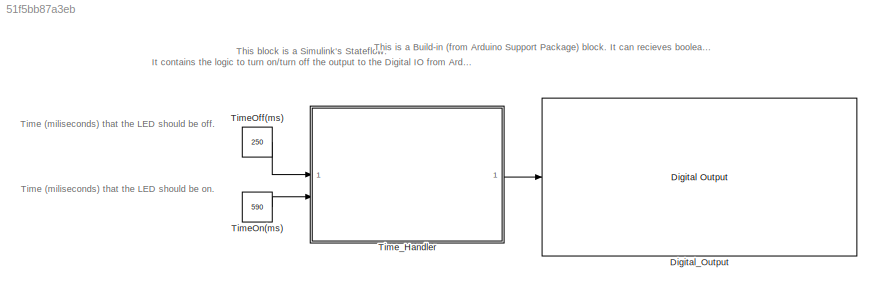
MODEL slx_51f5bb87a3eb
KIND model
CONFIG AbsTol = auto
CONFIG EnableMultiTasking = off
CONFIG FixedStep = 0.005
CONFIG MaxStep = auto
CONFIG MinStep = auto
CONFIG RelTol = 1e-3
CONFIG SampleTimeConstraint = Unconstrained
CONFIG SolverName = FixedStepDiscrete
CONFIG StartTime = 0.0
CONFIG StopTime = 10.0
BLOCK [Reference] Digital_Output  REF=arduinolib/Digital Output
  SourceBlock = arduinolib/Digital Output
  SourceType = Arduino Digital Output
BLOCK [Constant] TimeOff(ms)
  OutDataTypeStr = uint32
  Value = 250
BLOCK [Constant] TimeOn(ms)
  OutDataTypeStr = uint32
  Value = 590
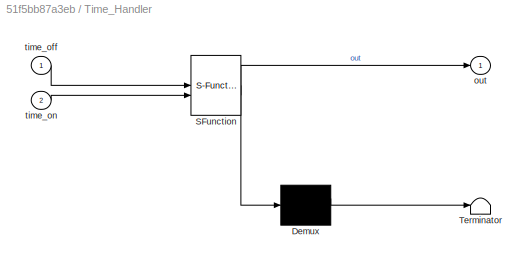
BLOCK [SubSystem] Time_Handler
  ErrorFcn = Stateflow.Translate.translate
  PermitHierarchicalResolution = ExplicitOnly
  SFBlockType = Chart
  TreatAsAtomicUnit = on
BLOCK [Demux] Time_Handler/ Demux 
  Outputs = 1
BLOCK [S-Function] Time_Handler/ SFunction 
  EnableBusSupport = on
  FunctionName = sf_sfun
  PortCounts = [2 2]
  SFcnIsStateOwnerBlock = off
  SFunctionDeploymentMode = off
  Tag = Stateflow S-Function 3
BLOCK [Terminator] Time_Handler/ Terminator 
BLOCK [Outport] Time_Handler/out
BLOCK [Inport] Time_Handler/time_off
BLOCK [Inport] Time_Handler/time_on
  Port = 2
ANNOTATION (root): Time (miliseconds) that the LED should be off.
ANNOTATION (root): This block is a Simulink's Stateflow. It contains the logic to turn on/turn off the output to the Digital IO from Arduino.
ANNOTATION (root): This is a Build-in (from Arduino Support Package) block. It can recieves boolean (false/true) to turn off/turn on the digital output.
ANNOTATION (root): Time (miliseconds) that the LED should be on.
LINE TimeOff(ms):1 -> Time_Handler:1
LINE TimeOn(ms):1 -> Time_Handler:2
LINE Time_Handler:1 -> Digital_Output:1
CHART Time_Handler states=2 transitions=3
  STATE_LABEL 'on\nen:\nout = true;\n'
  STATE_LABEL 'off\nen:\nout = false;'
CHART  states=0 transitions=0
